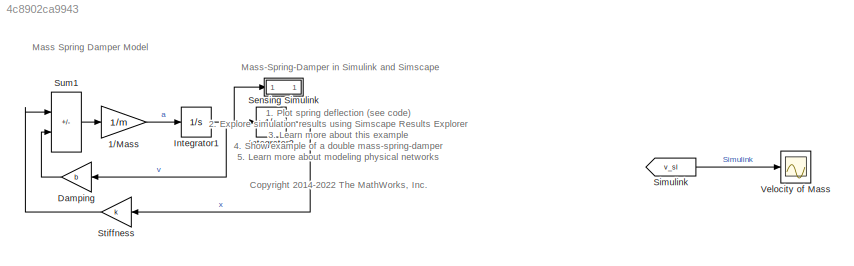
MODEL slx_4c8902ca9943
KIND model
CONFIG AbsTol = auto
CONFIG EnableMultiTasking = off
CONFIG FixedStep = auto
CONFIG MaxStep = auto
CONFIG MinStep = auto
CONFIG PreLoadFcn = m = 3.600;     % kg\nk = 400;    % N/m\nb = 10;      % Ns/m\nx0=1; %m
CONFIG RelTol = 1e-3
CONFIG SampleTimeConstraint = Unconstrained
CONFIG SolverName = VariableStepAuto
CONFIG StartTime = 0.0
CONFIG StopTime = 10.0
BLOCK [Gain] 1//Mass 
  Gain = 1/m
  OutDataTypeStr = Inherit: Same as input
  ParamDataTypeStr = Inherit: Same as input
  SaturateOnIntegerOverflow = on
BLOCK [Gain] Damping
  Gain = b
  OutDataTypeStr = Inherit: Same as input
  ParamDataTypeStr = Inherit: Same as input
  SaturateOnIntegerOverflow = on
BLOCK [Integrator] Integrator1
BLOCK [Integrator] Integrator2
  AttributesFormatString = x0 = %<InitialCondition> m
  InitialCondition = 1
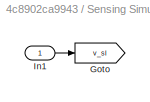
BLOCK [SubSystem] Sensing Simulink
  NameLocation = top
BLOCK [Goto] Sensing Simulink/Goto
  GotoTag = v_sl
  TagVisibility = global
BLOCK [Inport] Sensing Simulink/In1
BLOCK [From] Simulink
  GotoTag = v_sl
  NameLocation = top
  TagVisibility = global
BLOCK [Gain] Stiffness
  Gain = k
  OutDataTypeStr = Inherit: Same as input
  ParamDataTypeStr = Inherit: Same as input
  SaturateOnIntegerOverflow = on
BLOCK [Sum] Sum1
  IconShape = rectangular
  InputSameDT = on
  Inputs = --
  OutDataTypeStr = Inherit: Same as first input
  SaturateOnIntegerOverflow = on
BLOCK [Scope] Velocity of Mass
  Floating = off
  NumInputPorts = 1
  ScopeSpecificationString = Simulink.scopes.TimeScopeBlockCfg('CurrentConfiguration', extmgr.ConfigurationSet(extmgr.Configuration('Core','General UI',true,'FigureColor',[0.501960784313725 0.501960784313725 0.501960784313725]),extmgr.Configuration('Core','Source UI',true),extmgr.Configuration('Sources','WiredSimulink',true,'DataLoggingSaveFormat','Array','DataLoggingLimitDataPoints',true,'DataLoggingDecimation','1'),extmgr.C...<+2596ch>
ANNOTATION (root): 1. Plot spring deflection (see code) 2. Explore simulation results using Simscape Results Explorer 3. Learn more about this example 4. Show example of a double mass-spring-damper 5. Learn more about modeling physical networks
ANNOTATION (root): Mass Spring Damper Model
ANNOTATION (root): <copyright redacted>
ANNOTATION (root): Mass-Spring-Damper in Simulink and Simscape
LINE 1//Mass :1 -> Integrator1:1
LINE Damping:1 -> Sum1:2
NET Integrator1:1 -> Damping:1, Integrator2:1, Sensing Simulink:1
LINE Integrator2:1 -> Stiffness:1
LINE Sensing Simulink/In1:1 -> Sensing Simulink/Goto:1
LINE Simulink:1 -> Velocity of Mass:1
LINE Stiffness:1 -> Sum1:1
LINE Sum1:1 -> 1//Mass :1
note: NET lines group one-source signal fan-out (src -> all destinations, sorted); 1:1 wires keep LINE
